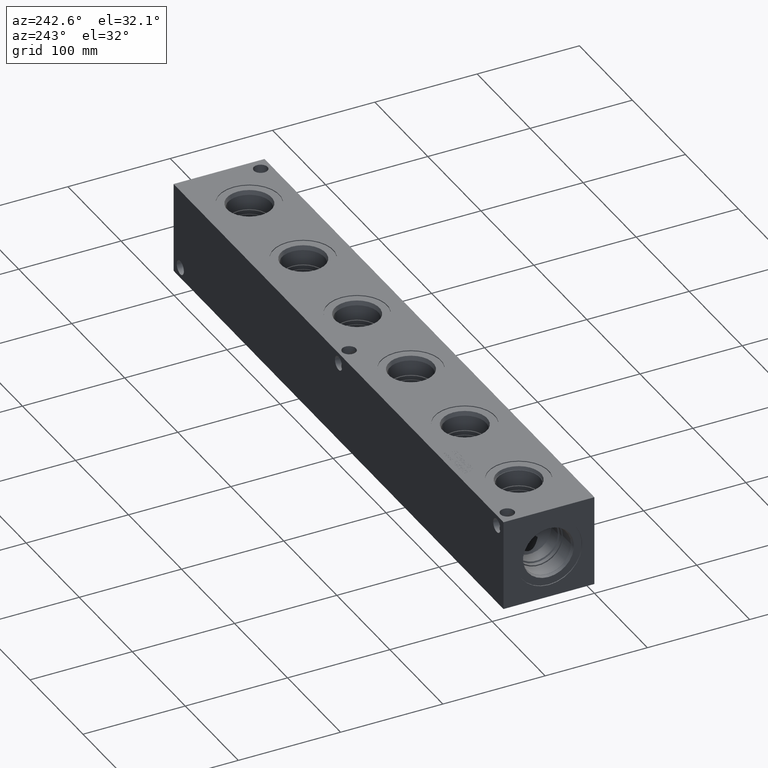
[diagram: clean part render]
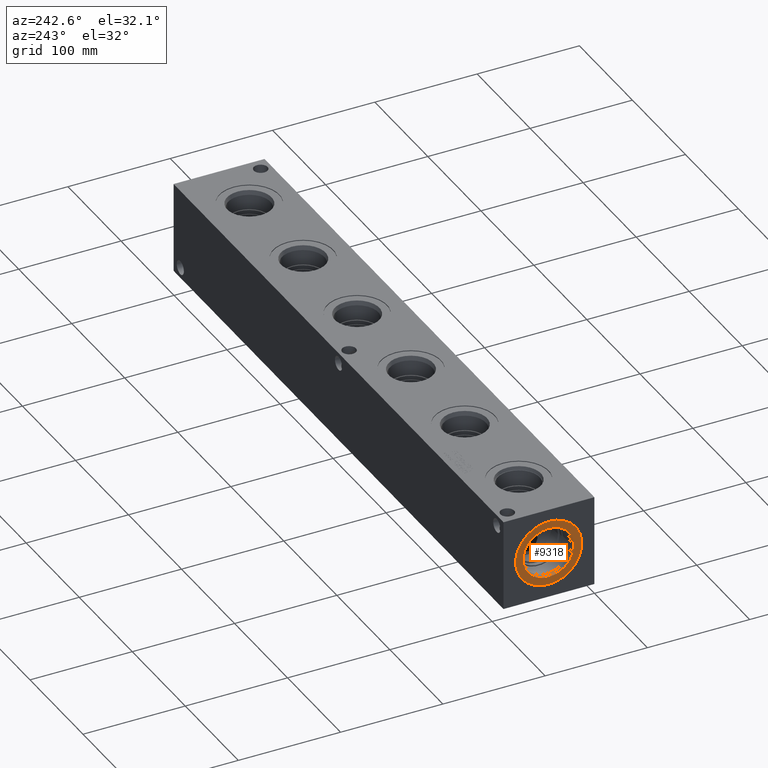
[diagram: same view with one face highlighted and labeled with its STEP entity id]
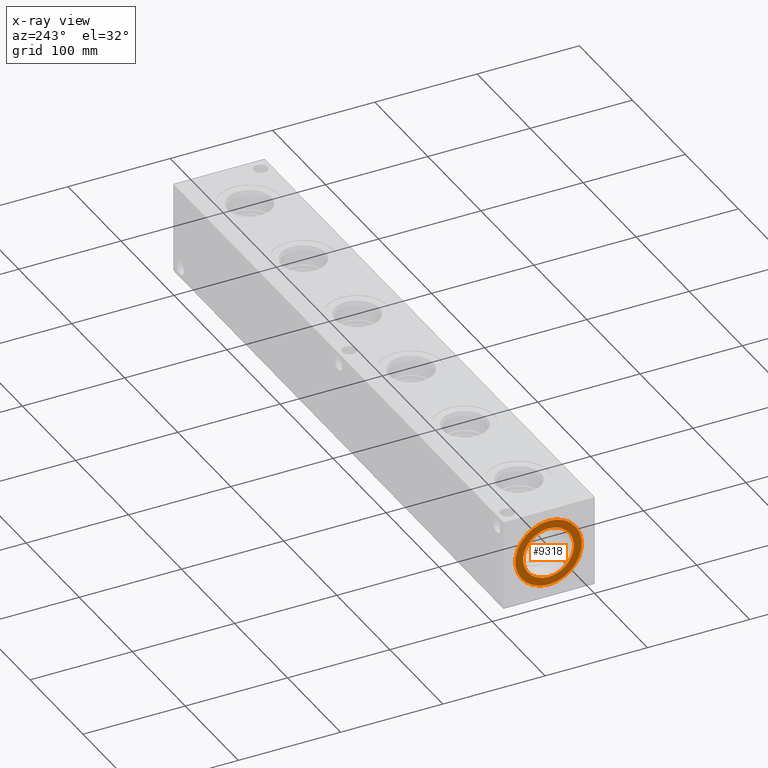
[diagram: x-ray of the same camera — body ghosted, the highlighted face saturated]
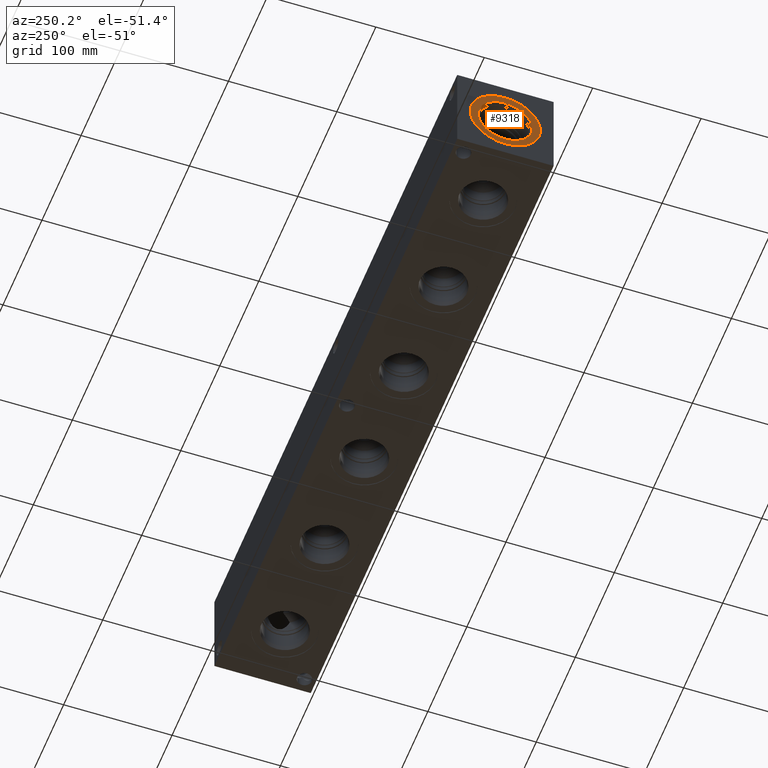
[diagram: same view with one face highlighted and labeled with its STEP entity id]
A machine part, auxiliary view. The second image highlights one B-rep face of the part: STEP entity #9318.
The next image is the same camera in x-ray: the body ghosted, the highlighted face saturated — about 0% of this face is hidden behind the body in this view.
A second angle (auxiliary view) of the same face is appended — the face is thin or edge-on in the first view.
In plain terms, the highlighted planar face has unit normal (1, 0, 0).
Its self-contained STEP definition (entity closure, byte-faithful):
#424=CIRCLE('',#9981,32.5628);
#425=CIRCLE('',#9982,32.5628);
#426=CIRCLE('',#9984,24.9047);
#427=CIRCLE('',#9985,24.9047);
#497=FACE_BOUND('',#1898,.T.);
#1345=FACE_OUTER_BOUND('',#1897,.T.);
#1897=EDGE_LOOP('',(#8222,#8223));
#1898=EDGE_LOOP('',(#8224,#8225));
#4356=VERTEX_POINT('',#16379);
#4357=VERTEX_POINT('',#16381);
#4358=VERTEX_POINT('',#16385);
#4359=VERTEX_POINT('',#16386);
#5658=EDGE_CURVE('',#4356,#4357,#424,.T.);
#5659=EDGE_CURVE('',#4357,#4356,#425,.T.);
#5660=EDGE_CURVE('',#4358,#4359,#426,.T.);
#5661=EDGE_CURVE('',#4359,#4358,#427,.T.);
#8222=ORIENTED_EDGE('',*,*,#5659,.F.);
#8223=ORIENTED_EDGE('',*,*,#5658,.F.);
#8224=ORIENTED_EDGE('',*,*,#5660,.T.);
#8225=ORIENTED_EDGE('',*,*,#5661,.T.);
#8527=PLANE('',#9983);
#9318=ADVANCED_FACE('',(#1345,#497),#8527,.F.);
#9981=AXIS2_PLACEMENT_3D('',#16382,#12054,#12055);
#9982=AXIS2_PLACEMENT_3D('',#16383,#12056,#12057);
#9983=AXIS2_PLACEMENT_3D('',#16384,#12058,#12059);
#9984=AXIS2_PLACEMENT_3D('',#16387,#12060,#12061);
#9985=AXIS2_PLACEMENT_3D('',#16388,#12062,#12063);
#12054=DIRECTION('center_axis',(1.,0.,0.));
#12055=DIRECTION('ref_axis',(0.,0.,-1.));
#12056=DIRECTION('center_axis',(1.,0.,0.));
#12057=DIRECTION('ref_axis',(0.,0.,-1.));
#12058=DIRECTION('center_axis',(1.,0.,0.));
#12059=DIRECTION('ref_axis',(0.,0.,-1.));
#12060=DIRECTION('center_axis',(1.,0.,0.));
#12061=DIRECTION('ref_axis',(0.,0.,-1.));
#12062=DIRECTION('center_axis',(1.,0.,0.));
#12063=DIRECTION('ref_axis',(0.,0.,-1.));
#16379=CARTESIAN_POINT('',(0.7874,44.45,11.8872));
#16381=CARTESIAN_POINT('',(0.7874,44.45,77.0128));
#16382=CARTESIAN_POINT('Origin',(0.7874,44.45,44.45));
#16383=CARTESIAN_POINT('Origin',(0.7874,44.45,44.45));
#16384=CARTESIAN_POINT('Origin',(0.7874,44.45,69.3547));
#16385=CARTESIAN_POINT('',(0.7874,44.45,69.3547));
#16386=CARTESIAN_POINT('',(0.787399999999999,44.45,19.5453));
#16387=CARTESIAN_POINT('Origin',(0.7874,44.45,44.45));
#16388=CARTESIAN_POINT('Origin',(0.7874,44.45,44.45));